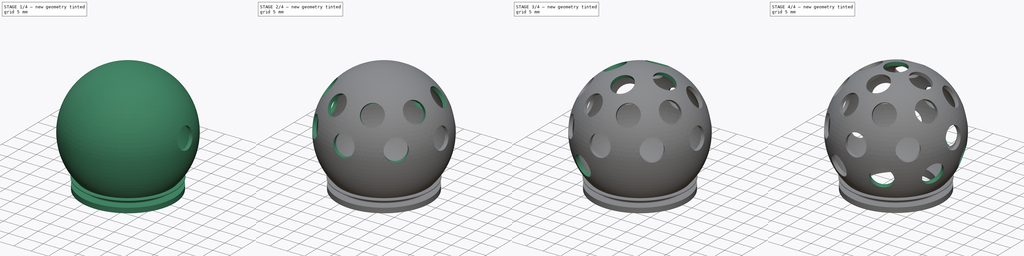
[diagram: build sequence overview — one tinted view per stage of 4, left to right]
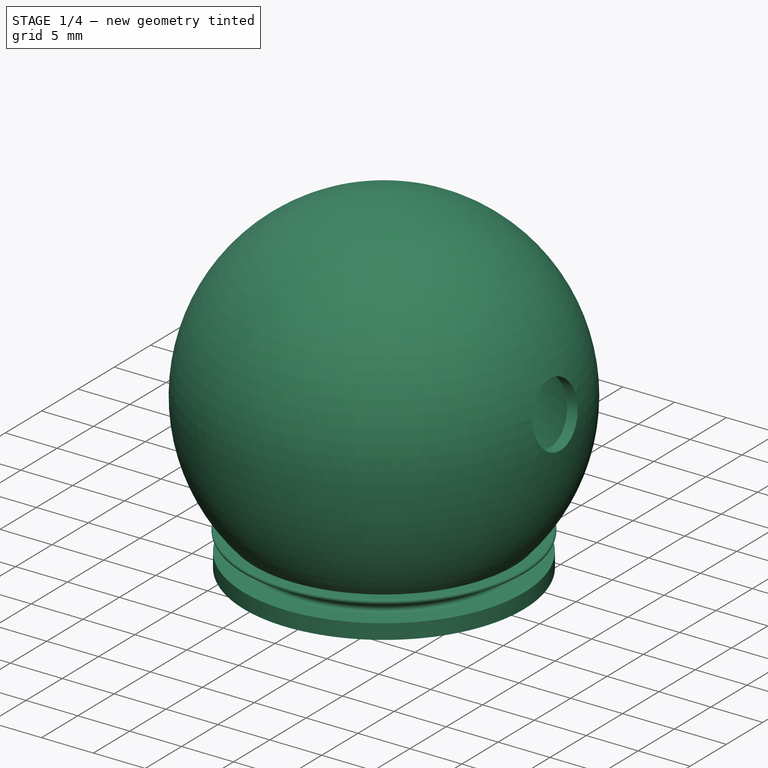
[diagram: stage 1 of 4 — iso view after this stage's code; geometry added in this stage tinted green]
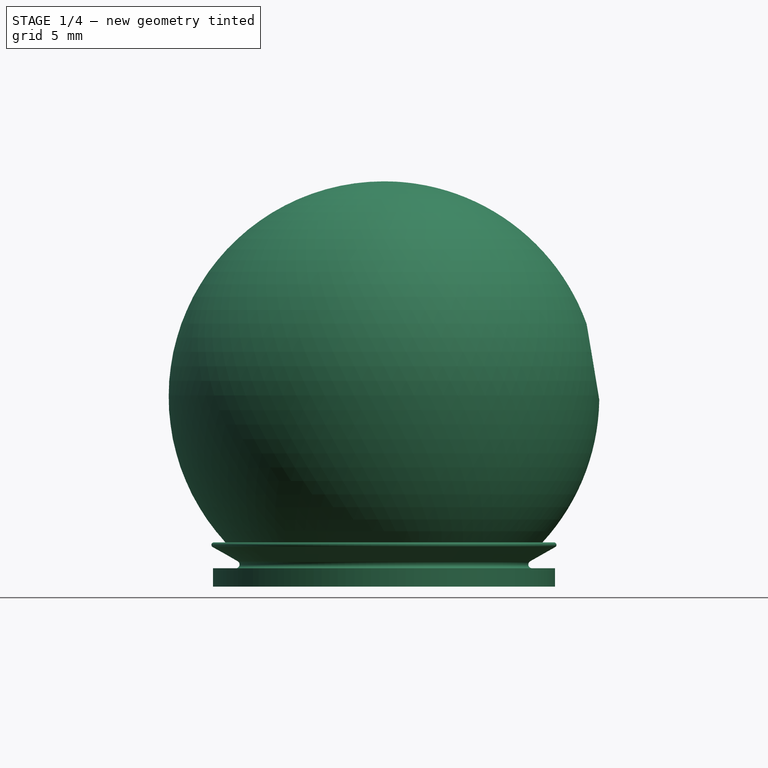
[diagram: stage 1 of 4 — front view after this stage's code; geometry added in this stage tinted green]
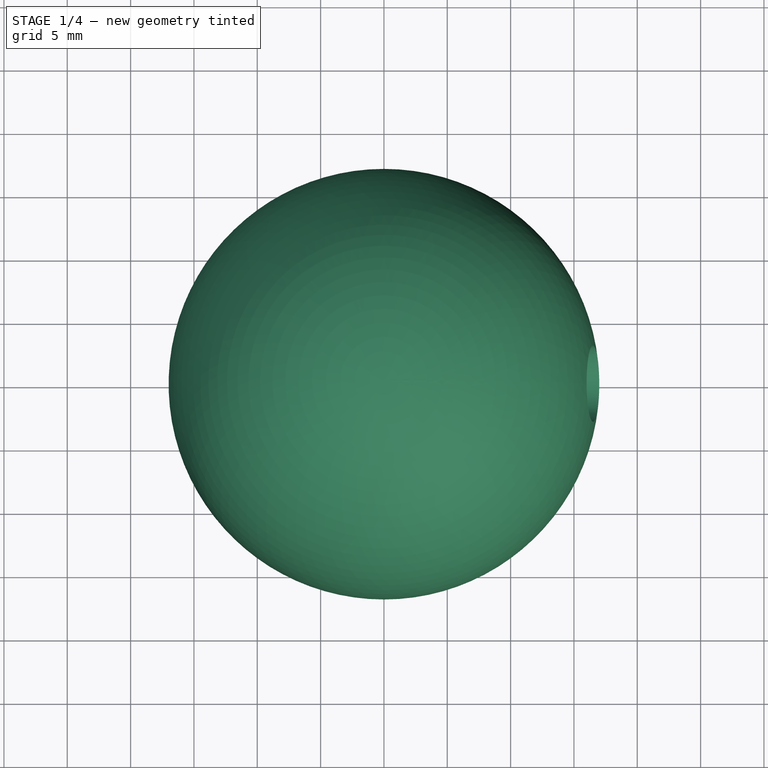
[diagram: stage 1 of 4 — top view after this stage's code; geometry added in this stage tinted green]
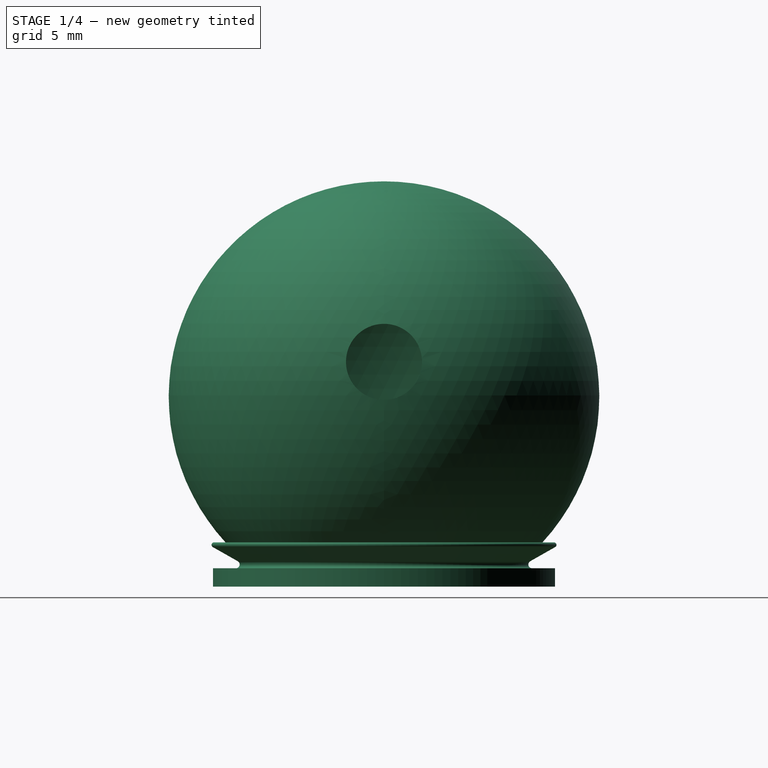
[diagram: stage 1 of 4 — right view after this stage's code; geometry added in this stage tinted green]
FCSTD DOCUMENT  (FreeCAD 1.0R38641 +678 (Git))
Label: Disco_ball
License: All rights reserved
LicenseURL: https://en.wikipedia.org/wiki/All_rights_reserved
objects: PartDesign::PolarPattern×4, PartDesign::SubtractiveCylinder×4, Sketcher::SketchObject×2, PartDesign::Revolution×1, PartDesign::Plane×1, PartDesign::Pocket×1, PartDesign::Body×1
note: 32 computed .brp shape members not serialized (recipe doc carries the construction recipe); baked Part::Feature solids carry a one-line shape summary decoded from their .brp

FEATURE [Sketcher::SketchObject] Sketch
  ArcFitTolerance = 1e-06
  AttachmentSupport = -> [XZ_Plane]
  FullyConstrained = true
  MakeInternals = false
  MapMode = 5
  Placement = pos=(0,0,0) rot=(1,0,0;1.5708rad)
  sketch-geometry (15):
    g0: LineSegment [constr] StartX=-16.6 StartY=0 StartZ=0 EndX=-16.6 EndY=-0.8 EndZ=0
    g1: LineSegment [constr] StartX=-16.6 StartY=-0.8 StartZ=0 EndX=16.6 EndY=-0.8 EndZ=0
    g2: LineSegment [constr] StartX=16.6 StartY=-0.8 StartZ=0 EndX=16.6 EndY=0 EndZ=0
    g3: LineSegment [constr] StartX=16.6 StartY=0 StartZ=0 EndX=-16.6 EndY=0 EndZ=0
    g4: ArcOfCircle CenterX=0 CenterY=15 CenterZ=0 NormalX=0 NormalY=0 NormalZ=1 AngleXU=0 Radius=16 StartAngle=5.3481 EndAngle=7.85398
    g5: ArcOfCircle CenterX=0 CenterY=15 CenterZ=0 NormalX=0 NormalY=0 NormalZ=1 AngleXU=0 Radius=17 StartAngle=5.54023 EndAngle=7.85398
    g6: LineSegment StartX=0 StartY=32 StartZ=0 EndX=4.9e-15 EndY=31 EndZ=0
    g7: LineSegment StartX=11.7 StartY=1.45 StartZ=0 EndX=13.5 EndY=1.45 EndZ=0
    g8: LineSegment StartX=9.5 StartY=2.12561 StartZ=0 EndX=9.5 EndY=0 EndZ=0
    g9: LineSegment StartX=9.5 StartY=0 StartZ=0 EndX=13.5 EndY=0 EndZ=0
    g10: LineSegment StartX=13.5 StartY=0 StartZ=0 EndX=13.5 EndY=1.45 EndZ=0
    g11: ArcOfCircle CenterX=11.7 CenterY=1.75 CenterZ=0 NormalX=0 NormalY=0 NormalZ=1 AngleXU=0 Radius=0.3 StartAngle=2.08659 EndAngle=4.71239
    g12: LineSegment StartX=12.52 StartY=3.5 StartZ=0 EndX=13.42 EndY=3.5 EndZ=0
    g13: LineSegment StartX=11.552 StartY=2.01097 StartZ=0 EndX=13.5186 EndY=3.12602 EndZ=0
    g14: ArcOfCircle CenterX=13.42 CenterY=3.3 CenterZ=0 NormalX=0 NormalY=0 NormalZ=1 AngleXU=0 Radius=0.2 StartAngle=5.22819 EndAngle=7.85398
  constraints (43):
    c: Coincident(g0,g1)
    c: Coincident(g1,g2)
    c: Coincident(g2,g3)
    c: Coincident(g3,g0)
    c: Vertical(g0)
    c: Vertical(g2)
    c: Horizontal(g1)
    c: Symmetric(g2,g0,g-2)
    c: PointOnObject(g0,g-1)
    c: Distance(g1,g1) = 33.2
    c: Distance(g0,g0) = 0.8
    c: PointOnObject(g4,g-2)
    c: Diameter(g4) = 32
    c: DistanceY(g-1,g4) = 15
    c: PointOnObject(g4,g-2)
    c: Coincident(g5,g4)
    c: PointOnObject(g5,g-2)
    c: Coincident(g6,g5)
    c: Coincident(g6,g4)
    c: Horizontal(g7)
    c: Distance(g9,g7) = 1.45
    c: Coincident(g8,g4)
    c: PointOnObject(g8,g3)
    c: Coincident(g9,g8)
    c: Vertical(g8)
    c: Coincident(g10,g9)
    c: Coincident(g10,g7)
    c: Vertical(g10)
    c: PointOnObject(g9,g-1)
    c: DistanceX(g-1,g9) = 13.5
    c: Diameter(g11) = 0.6
    c: Distance(g4,g5) = 1
    c: Tangent(g11,g7) = -1.5708
    c: DistanceX(g9,g9) = 4
    c: Horizontal(g12)
    c: Coincident(g5,g12)
    c: Tangent(g13,g11) = 1.5708
    c: DistanceX(g7,g7) = 1.8
    c: Diameter(g14) = 0.4
    c: Distance(g12,g12) = 0.9
    c: DistanceY(g-1,g12) = 3.5
    c: Tangent(g14,g12) = 1.5708
    c: Tangent(g14,g13) = -1.5708
FEATURE [PartDesign::Revolution] Revolution
  Angle = 360
  Angle2 = 60
  Axis = (0,2e-16,1)
  Base = (0,0,0)
  Placement = pos=(0,0,0) rot=(1,0,0;1.5708rad)
  Profile = -> Sketch
  ReferenceAxis = -> Sketch [V_Axis]
  Refine = true
  Reversed = true
  Suppressed = false
  Type = 0
FEATURE [PartDesign::Plane] DatumPlane
  AttachmentOffset = pos=(19,0,0) rot=(0,1,0;1.5708rad)
  AttachmentSupport = -> [Revolution]
  Length = 60
  MapMode = 45
  Placement = pos=(19,4.9e-15,17.75) rot=(0,1,0;1.5708rad)
  ResizeMode = 0
  Width = 60
FEATURE [Sketcher::SketchObject] Sketch001
  ArcFitTolerance = 1e-06
  AttachmentSupport = -> [DatumPlane]
  FullyConstrained = true
  MakeInternals = false
  MapMode = 5
  Placement = pos=(19,4.9e-15,17.75) rot=(0,1,0;1.5708rad)
  sketch-geometry (1):
    g0: Circle CenterX=0 CenterY=0 CenterZ=0 NormalX=0 NormalY=0 NormalZ=1 AngleXU=0 Radius=3
  constraints (2):
    c: Coincident(g0,g-1)
    c: Diameter(g0) = 6
FEATURE [PartDesign::Pocket] Pocket
  BaseFeature = -> Revolution
  Direction = (-1,0,-2e-16)
  Length = 7
  Length2 = 5
  Placement = pos=(0,0,0) rot=(1,0,0;1.5708rad)
  Profile = -> Sketch001
  ReferenceAxis = -> Sketch001 [N_Axis]
  Refine = true
  Suppressed = false
  Type = 0
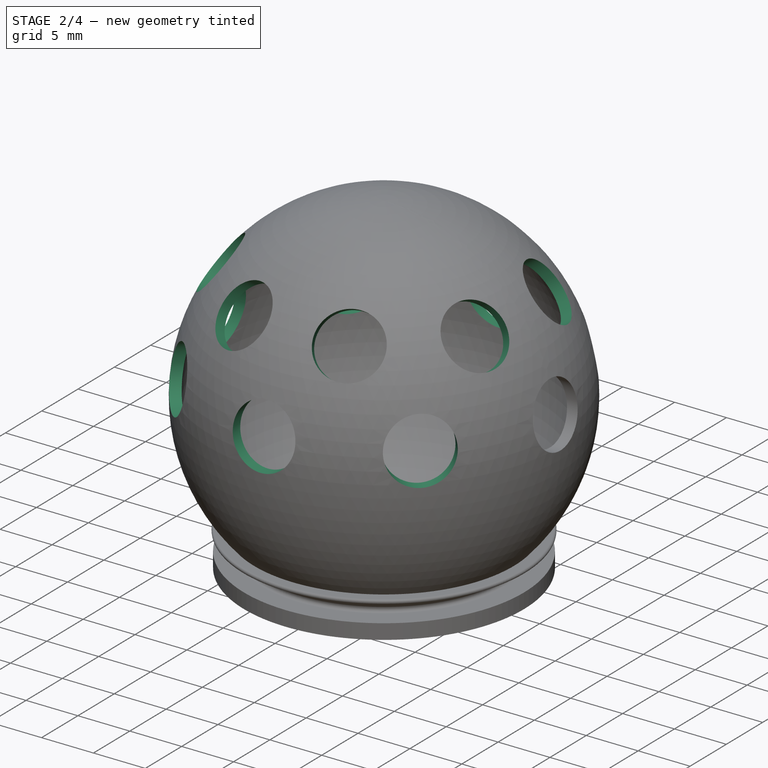
[diagram: stage 2 of 4 — iso view after this stage's code; geometry added in this stage tinted green]
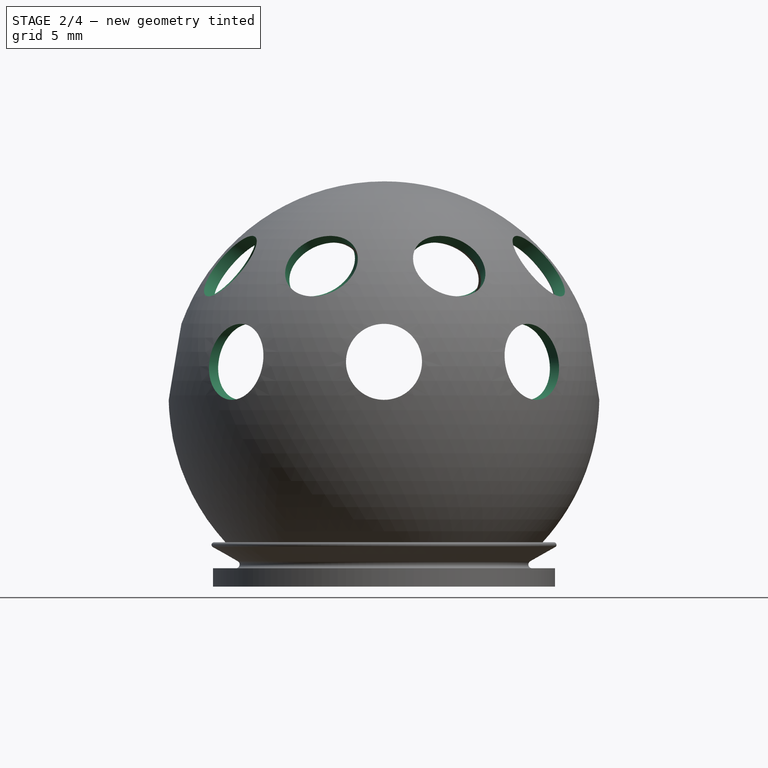
[diagram: stage 2 of 4 — front view after this stage's code; geometry added in this stage tinted green]
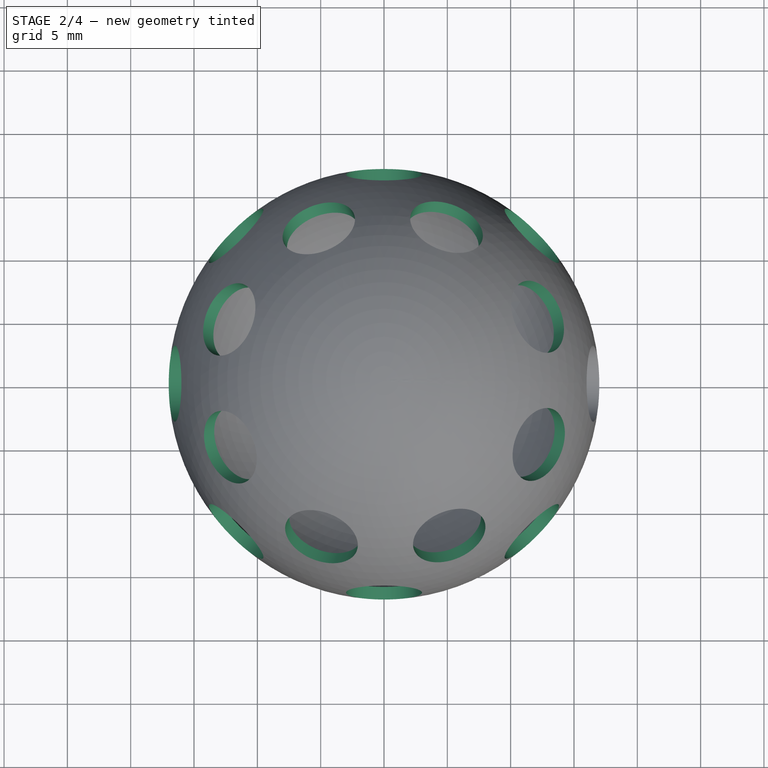
[diagram: stage 2 of 4 — top view after this stage's code; geometry added in this stage tinted green]
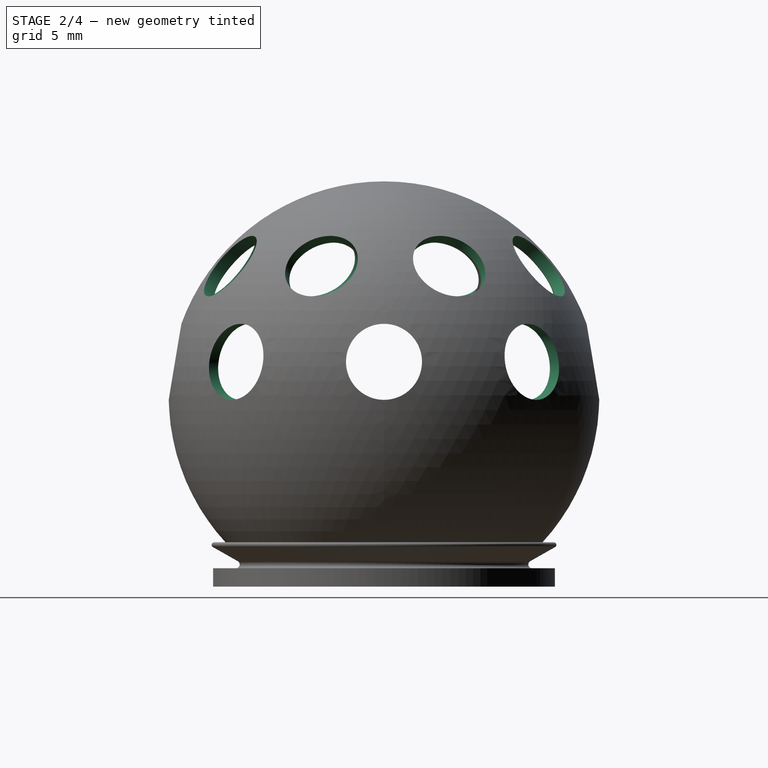
[diagram: stage 2 of 4 — right view after this stage's code; geometry added in this stage tinted green]
FEATURE [PartDesign::PolarPattern] PolarPattern
  Angle = 360
  Axis = -> Z_Axis
  BaseFeature = -> Pocket
  Mode = 0
  Occurrences = 8
  Offset = 120
  Originals = -> [Pocket]
  Placement = pos=(0,0,0) rot=(1,0,0;1.5708rad)
  Refine = true
  Suppressed = false
  TransformMode = 0
FEATURE [PartDesign::SubtractiveCylinder] Cylinder
  Angle = 360
  AttacherType = Attacher::AttachEngine3D
  AttachmentOffset = pos=(0,17.7,0) rot=(-0.799605,-0.580063,-0.155428;0.646683rad)
  AttachmentSupport = -> [YZ_Plane]
  BaseFeature = -> PolarPattern
  FirstAngle = 0
  Height = 21
  MapMode = 5
  Placement = pos=(0,0,17.7) rot=(0.595507,0.401675,0.695721;1.53984rad)
  Radius = 3
  Refine = true
  SecondAngle = 0
  Suppressed = false
FEATURE [PartDesign::PolarPattern] PolarPattern001
  Angle = 360
  Axis = -> Z_Axis
  BaseFeature = -> Cylinder
  Mode = 0
  Occurrences = 8
  Offset = 120
  Originals = -> [Cylinder]
  Placement = pos=(0,0,17.7) rot=(0.595507,0.401675,0.695721;1.53984rad)
  Refine = true
  Suppressed = false
  TransformMode = 0
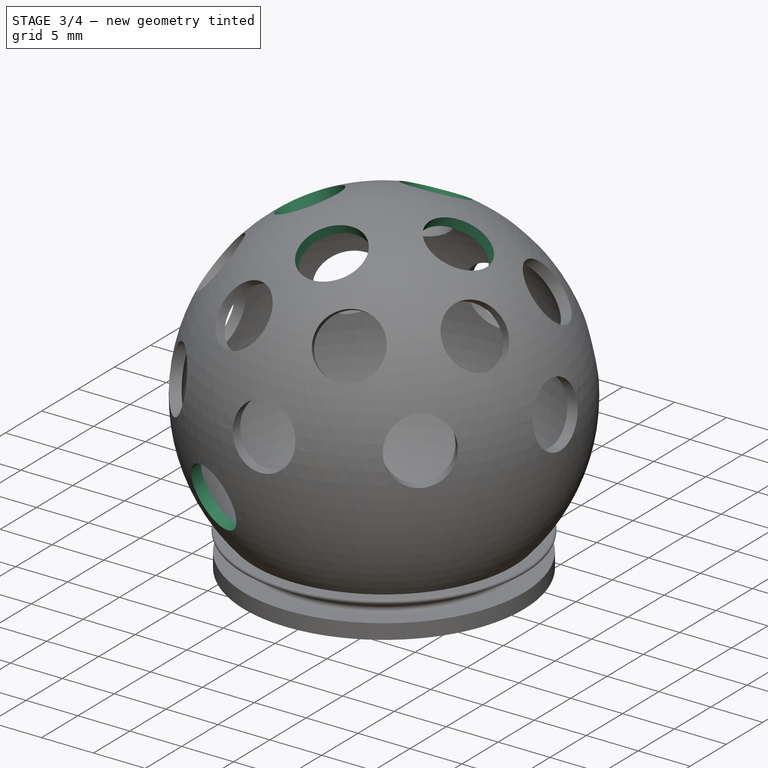
[diagram: stage 3 of 4 — iso view after this stage's code; geometry added in this stage tinted green]
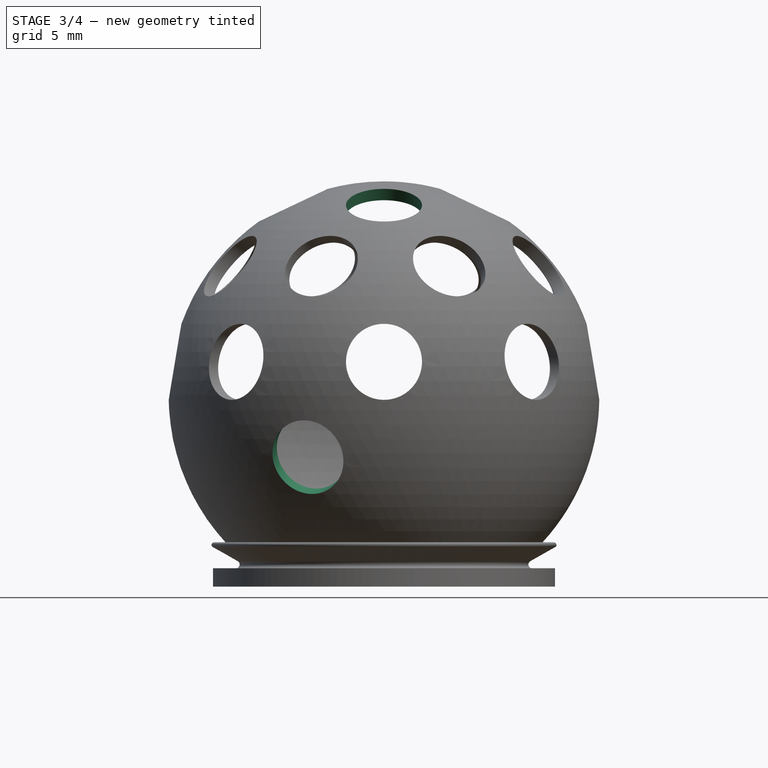
[diagram: stage 3 of 4 — front view after this stage's code; geometry added in this stage tinted green]
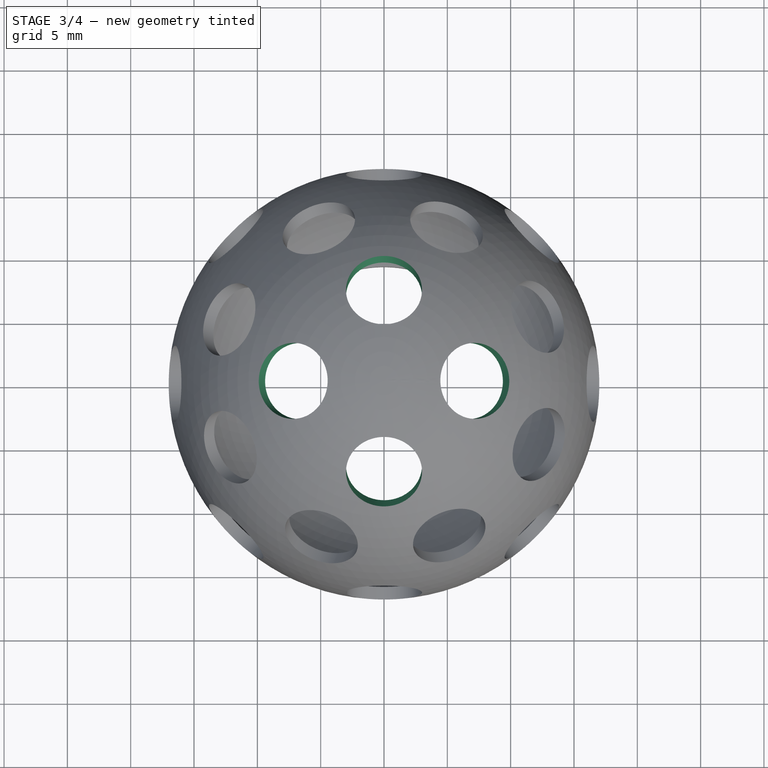
[diagram: stage 3 of 4 — top view after this stage's code; geometry added in this stage tinted green]
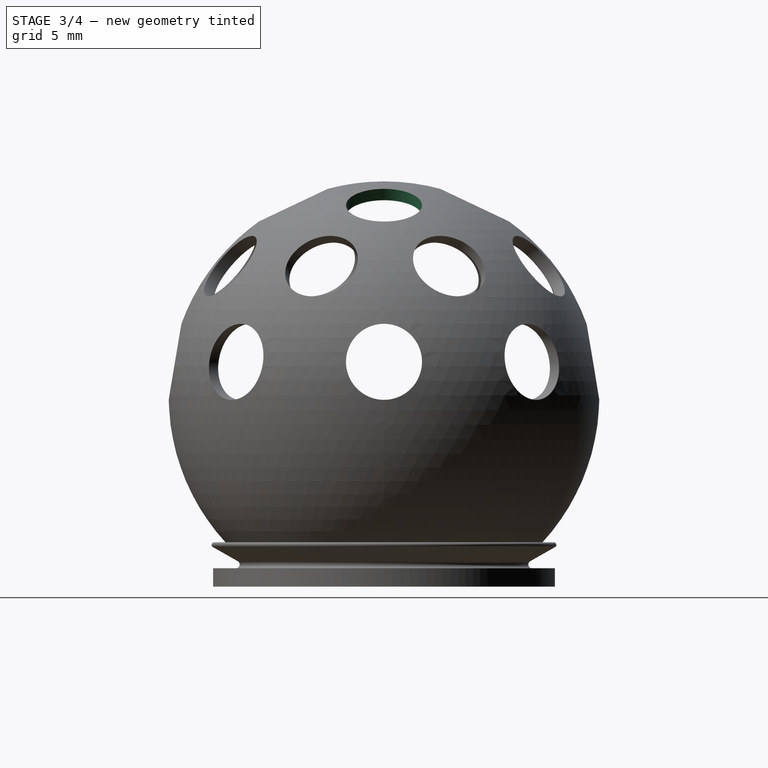
[diagram: stage 3 of 4 — right view after this stage's code; geometry added in this stage tinted green]
FEATURE [PartDesign::SubtractiveCylinder] Cylinder001
  Angle = 360
  AttacherType = Attacher::AttachEngine3D
  AttachmentOffset = pos=(0,17.7,0) rot=(-1,0,0;1.0472rad)
  AttachmentSupport = -> [XZ_Plane]
  BaseFeature = -> PolarPattern001
  FirstAngle = 0
  Height = 25
  MapMode = 5
  Placement = pos=(0,3.9e-15,17.7) rot=(1,0,0;0.523599rad)
  Radius = 3
  Refine = true
  SecondAngle = 0
  Suppressed = false
FEATURE [PartDesign::PolarPattern] PolarPattern002
  Angle = 360
  Axis = -> Z_Axis
  BaseFeature = -> Cylinder001
  Mode = 0
  Occurrences = 4
  Offset = 120
  Originals = -> [Cylinder001]
  Placement = pos=(0,3.9e-15,17.7) rot=(1,0,0;0.523599rad)
  Refine = true
  Suppressed = false
  TransformMode = 0
FEATURE [PartDesign::SubtractiveCylinder] Cylinder002
  Angle = 360
  AttacherType = Attacher::AttachEngine3D
  AttachmentOffset = pos=(0,17.7,0) rot=(0.744004,-0.652337,0.14462;0.579196rad)
  AttachmentSupport = -> [XZ_Plane]
  BaseFeature = -> PolarPattern002
  FirstAngle = 0
  Height = 37
  MapMode = 5
  Placement = pos=(0,3.9e-15,17.7) rot=(0.974454,-0.189415,-0.12067;2.03045rad)
  Radius = 3
  Refine = true
  SecondAngle = 0
  Suppressed = false
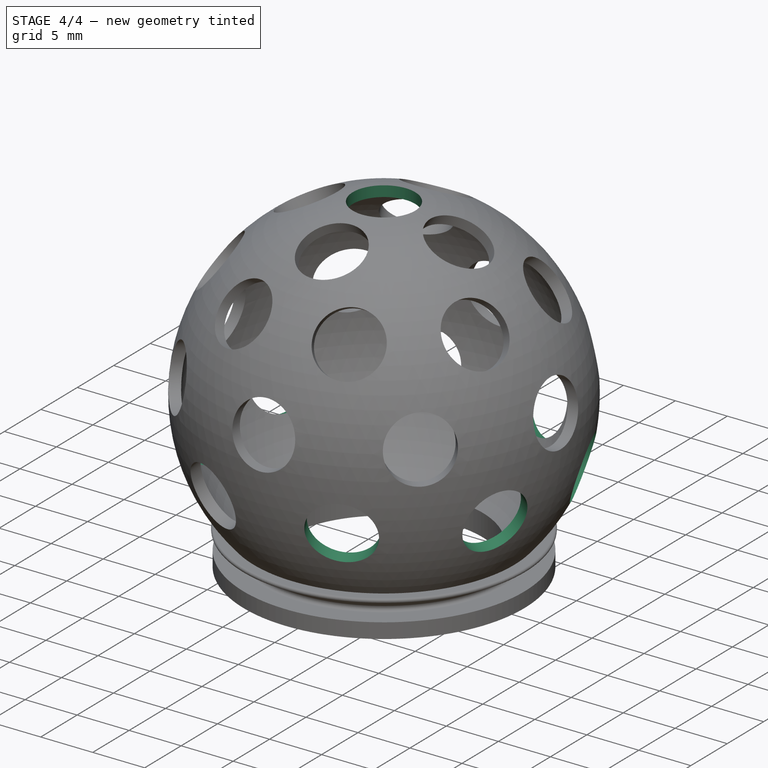
[diagram: stage 4 of 4 — iso view after this stage's code; geometry added in this stage tinted green]
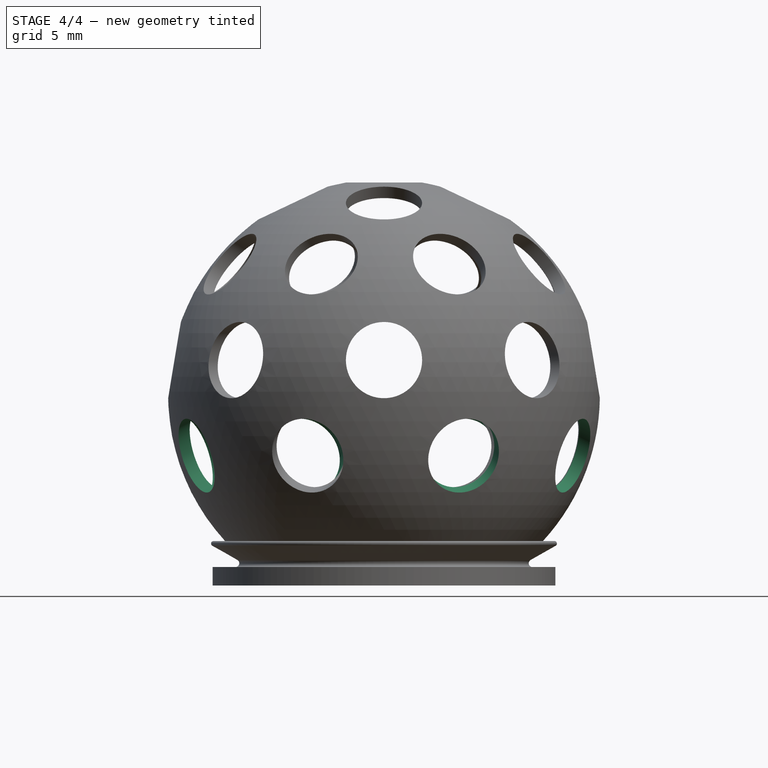
[diagram: stage 4 of 4 — front view after this stage's code; geometry added in this stage tinted green]
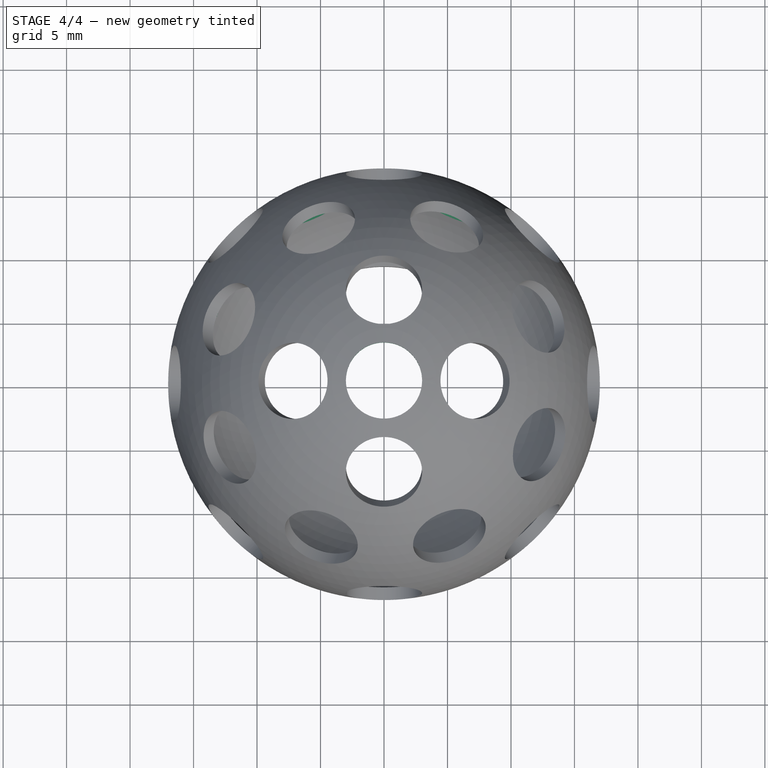
[diagram: stage 4 of 4 — top view after this stage's code; geometry added in this stage tinted green]
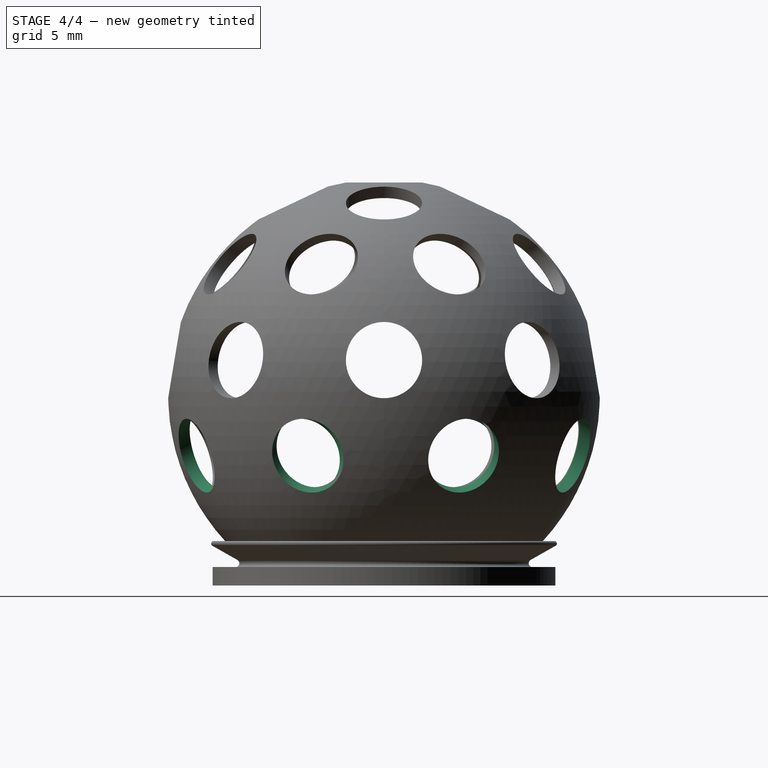
[diagram: stage 4 of 4 — right view after this stage's code; geometry added in this stage tinted green]
FEATURE [PartDesign::PolarPattern] PolarPattern003
  Angle = 360
  Axis = -> Z_Axis
  BaseFeature = -> Cylinder002
  Mode = 0
  Occurrences = 8
  Offset = 120
  Originals = -> [Cylinder002]
  Placement = pos=(0,3.9e-15,17.7) rot=(0.974454,-0.189415,-0.12067;2.03045rad)
  Refine = true
  Suppressed = false
  TransformMode = 0
FEATURE [PartDesign::SubtractiveCylinder] Cylinder003
  Angle = 360
  AttacherType = Attacher::AttachEngine3D
  AttachmentSupport = -> [XY_Plane]
  BaseFeature = -> PolarPattern003
  FirstAngle = 0
  Height = 46
  MapMode = 5
  Radius = 3
  Refine = true
  SecondAngle = 0
  Suppressed = false
FEATURE [PartDesign::Body] Body
  AllowCompound = false
  Group = -> [Sketch,Revolution,DatumPlane,Sketch001,Pocket,PolarPattern,Cylinder,PolarPattern001,Cylinder001,PolarPattern002,Cylinder002,PolarPattern003,Cylinder003]
  Origin = -> Origin
  Tip = -> Cylinder003
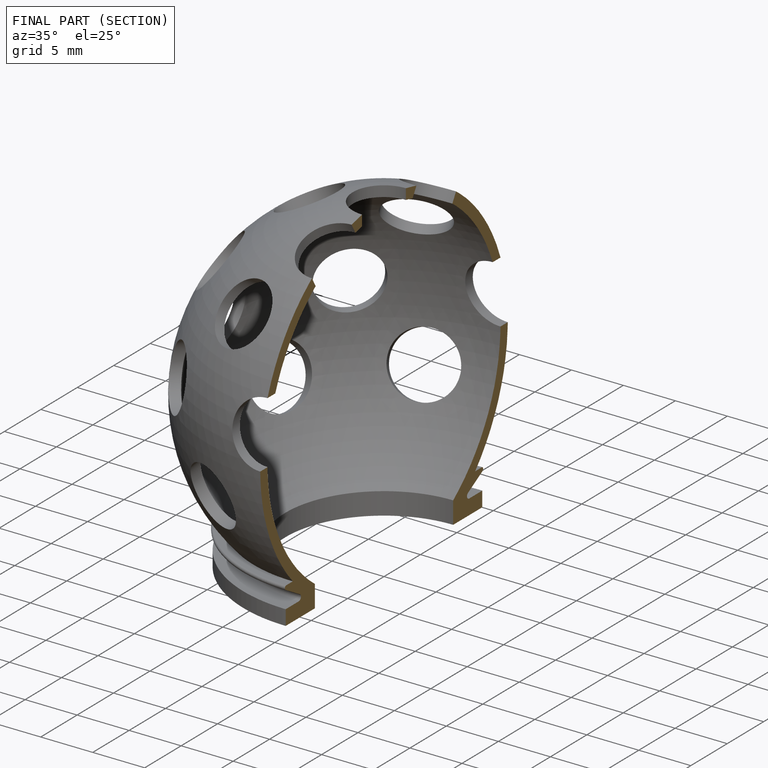
[diagram: finished part — half-section view (interior)]
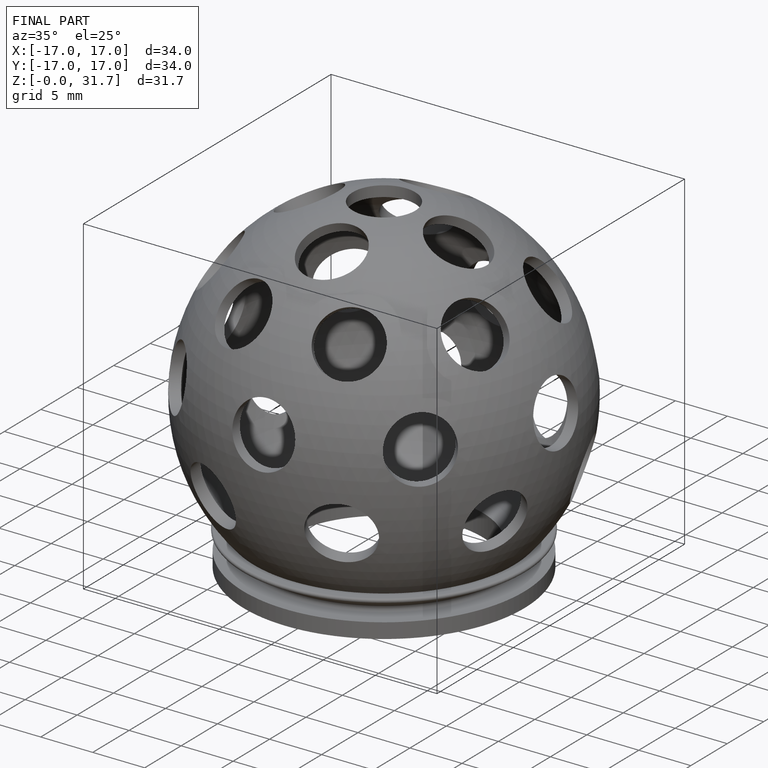
[diagram: finished part — iso view with bounding-box wireframe]
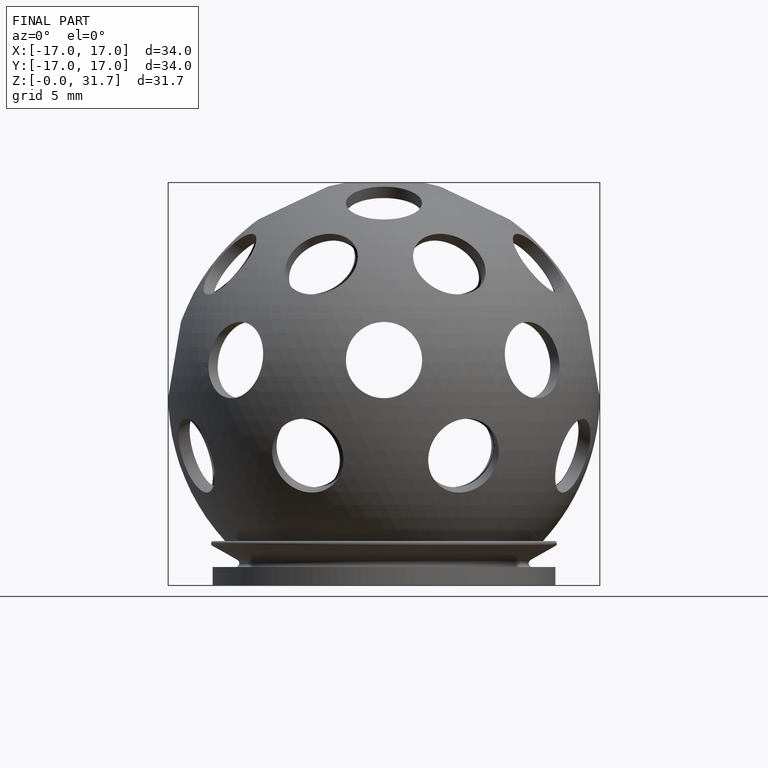
[diagram: finished part — front view with bounding-box wireframe]
